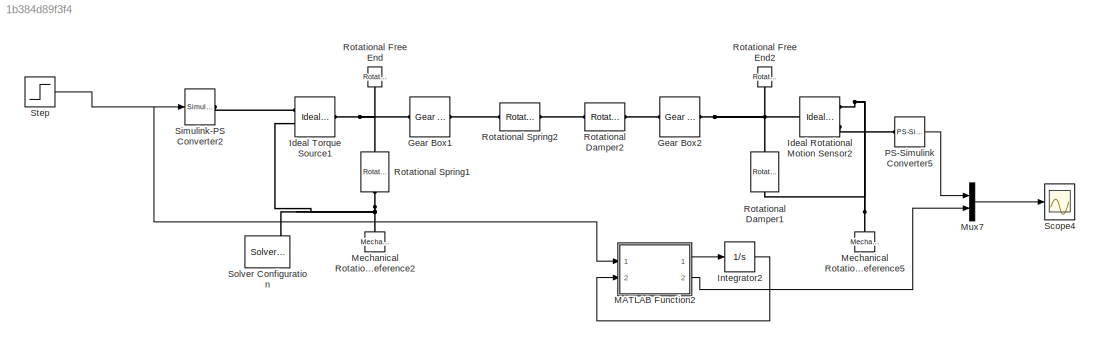
MODEL slx_1b384d89f3f4
KIND model
CONFIG AbsTol = auto
CONFIG FixedStep = 1e-3
CONFIG MaxStep = auto
CONFIG MinStep = auto
CONFIG RelTol = 1e-3
CONFIG SampleTimeConstraint = Unconstrained
CONFIG Solver = ode4
CONFIG SolverMode = Auto
CONFIG SolverName = ode4
CONFIG StartTime = 0.0
CONFIG StopTime = 10.0
BLOCK [Reference] Gear Box1  REF=fl_lib/Mechanical/Mechanisms/Gear Box
  ClassName = gear_box
  ComponentPath = foundation.mechanical.mechanisms.gear_box
  ComponentVariantNames = gear_box
  ComponentVariants = foundation.mechanical.mechanisms.gear_box
  LogSimulationData = off
  Ports = [0, 0, 0, 0, 0, 1, 1]
  SchemaVersion = 1
  SourceBlock = fl_lib/Mechanical/Mechanisms/Gear Box
  SourceFile = foundation.mechanical.mechanisms.gear_box
  SourceType = Gear Box
  ratio = 300/30
  ratio_unit = 1
  t_in = 0
  t_in_priority = High
  t_in_specify = off
  t_in_unit = N*m
  t_out = 0
  t_out_priority = High
  t_out_specify = off
  t_out_unit = N*m
BLOCK [Reference] Gear Box2  REF=fl_lib/Mechanical/Mechanisms/Gear Box
  ClassName = gear_box
  ComponentPath = foundation.mechanical.mechanisms.gear_box
  ComponentVariantNames = gear_box
  ComponentVariants = foundation.mechanical.mechanisms.gear_box
  LogSimulationData = off
  Ports = [0, 0, 0, 0, 0, 1, 1]
  SchemaVersion = 1
  SourceBlock = fl_lib/Mechanical/Mechanisms/Gear Box
  SourceFile = foundation.mechanical.mechanisms.gear_box
  SourceType = Gear Box
  ratio = 100/10
  ratio_unit = 1
  t_in = 0
  t_in_priority = High
  t_in_specify = off
  t_in_unit = N*m
  t_out = 0
  t_out_priority = High
  t_out_specify = off
  t_out_unit = N*m
BLOCK [Reference] Ideal Rotational Motion Sensor2  REF=fl_lib/Mechanical/Mechanical Sensors/Ideal Rotational
Motion Sensor
  ClassName = angular_velocity
  ComponentPath = foundation.mechanical.sensors.angular_velocity
  ComponentVariantNames = angular_velocity
  ComponentVariants = foundation.mechanical.sensors.angular_velocity
  LogSimulationData = off
  Ports = [0, 0, 0, 0, 0, 1, 3]
  SchemaVersion = 1
  SourceBlock = fl_lib/Mechanical/Mechanical Sensors/Ideal Rotational\nMotion Sensor
  SourceFile = foundation.mechanical.sensors.angular_velocity
  SourceType = Ideal Rotational\nMotion Sensor
  offset = 0
  offset_unit = rad
BLOCK [Reference] Ideal Torque Source1  REF=fl_lib/Mechanical/Mechanical Sources/Ideal Torque Source
  ClassName = torque
  ComponentPath = foundation.mechanical.sources.torque
  ComponentVariantNames = torque
  ComponentVariants = foundation.mechanical.sources.torque
  LogSimulationData = off
  Ports = [0, 0, 0, 0, 0, 1, 2]
  SchemaVersion = 1
  SourceBlock = fl_lib/Mechanical/Mechanical Sources/Ideal Torque Source
  SourceFile = foundation.mechanical.sources.torque
  SourceType = Ideal Torque Source
BLOCK [Integrator] Integrator2
  InitialCondition = [0;0]
  Ports = [1, 1]
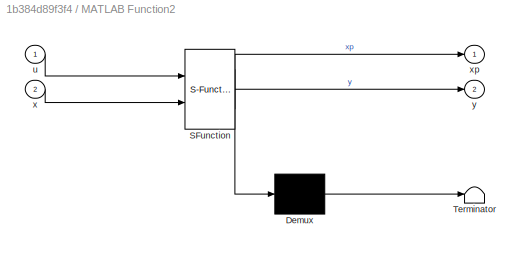
BLOCK [SubSystem] MATLAB Function2
  ErrorFcn = Stateflow.Translate.translate
  PermitHierarchicalResolution = ExplicitOnly
  Ports = [2, 2]
  RequestExecContextInheritance = off
  SFBlockType = MATLAB Function
  TreatAsAtomicUnit = on
BLOCK [Demux] MATLAB Function2/ Demux 
  Outputs = 1
  Ports = [1, 1]
BLOCK [S-Function] MATLAB Function2/ SFunction 
  EnableBusSupport = on
  FunctionName = sf_sfun
  PortCounts = [2 3]
  Ports = [2, 3]
  Tag = Stateflow S-Function untitled 3
BLOCK [Terminator] MATLAB Function2/ Terminator 
BLOCK [Inport] MATLAB Function2/u
  IconDisplay = Port number
BLOCK [Inport] MATLAB Function2/x
  IconDisplay = Port number
  Port = 2
BLOCK [Outport] MATLAB Function2/xp
  IconDisplay = Port number
BLOCK [Outport] MATLAB Function2/y
  IconDisplay = Port number
  Port = 2
BLOCK [Reference] Mechanical Rotational Reference2  REF=fl_lib/Mechanical/Rotational Elements/Mechanical
Rotational Reference
  ClassName = reference
  ComponentPath = foundation.mechanical.rotational.reference
  ComponentVariantNames = reference
  ComponentVariants = foundation.mechanical.rotational.reference
  LogSimulationData = off
  Ports = [0, 0, 0, 0, 0, 1]
  SchemaVersion = 1
  SourceBlock = fl_lib/Mechanical/Rotational Elements/Mechanical\nRotational Reference
  SourceFile = foundation.mechanical.rotational.reference
  SourceType = Mechanical\nRotational Reference
BLOCK [Reference] Mechanical Rotational Reference5  REF=fl_lib/Mechanical/Rotational Elements/Mechanical
Rotational Reference
  ClassName = reference
  ComponentPath = foundation.mechanical.rotational.reference
  ComponentVariantNames = reference
  ComponentVariants = foundation.mechanical.rotational.reference
  LogSimulationData = off
  Ports = [0, 0, 0, 0, 0, 1]
  SchemaVersion = 1
  SourceBlock = fl_lib/Mechanical/Rotational Elements/Mechanical\nRotational Reference
  SourceFile = foundation.mechanical.rotational.reference
  SourceType = Mechanical\nRotational Reference
BLOCK [Mux] Mux7
  DisplayOption = bar
  Inputs = 2
  Ports = [2, 1]
BLOCK [Reference] PS-Simulink Converter5  REF=nesl_utility/PS-Simulink
Converter
  AffineConversion = off
  Frequencies = []
  LeftPortType = input
  PhysicalDomain = network_engine_domain
  Ports = [0, 1, 0, 0, 0, 1]
  PseudoPeriodic = off
  RightPortType = output
  SourceBlock = nesl_utility/PS-Simulink\nConverter
  SourceType = PS-Simulink\nConverter
  SubClassName = ps_output
  Unit = 1
BLOCK [Reference] Rotational Damper1  REF=fl_lib/Mechanical/Rotational Elements/Rotational Damper
  ClassName = damper
  ComponentPath = foundation.mechanical.rotational.damper
  ComponentVariantNames = damper
  ComponentVariants = foundation.mechanical.rotational.damper
  D = 200
  D_unit = N*m/(rad/s)
  LogSimulationData = off
  Ports = [0, 0, 0, 0, 0, 1, 1]
  SchemaVersion = 1
  SourceBlock = fl_lib/Mechanical/Rotational Elements/Rotational Damper
  SourceFile = foundation.mechanical.rotational.damper
  SourceType = Rotational Damper
  t = 0
  t_priority = High
  t_specify = off
  t_unit = N*m
  w = 0
  w_priority = High
  w_specify = off
  w_unit = rad/s
BLOCK [Reference] Rotational Damper2  REF=fl_lib/Mechanical/Rotational Elements/Rotational Damper
  ClassName = damper
  ComponentPath = foundation.mechanical.rotational.damper
  ComponentVariantNames = damper
  ComponentVariants = foundation.mechanical.rotational.damper
  D = 3
  D_unit = N*m/(rad/s)
  LogSimulationData = off
  Ports = [0, 0, 0, 0, 0, 1, 1]
  SchemaVersion = 1
  SourceBlock = fl_lib/Mechanical/Rotational Elements/Rotational Damper
  SourceFile = foundation.mechanical.rotational.damper
  SourceType = Rotational Damper
  t = 0
  t_priority = High
  t_specify = off
  t_unit = N*m
  w = 0
  w_priority = High
  w_specify = off
  w_unit = rad/s
BLOCK [Reference] Rotational Free End  REF=fl_lib/Mechanical/Rotational Elements/Rotational Free End
  ClassName = free_end
  ComponentPath = foundation.mechanical.rotational.free_end
  ComponentVariantNames = free_end
  ComponentVariants = foundation.mechanical.rotational.free_end
  LogSimulationData = off
  Ports = [0, 0, 0, 0, 0, 1]
  SchemaVersion = 1
  SourceBlock = fl_lib/Mechanical/Rotational Elements/Rotational Free End
  SourceFile = foundation.mechanical.rotational.free_end
  SourceType = Rotational Free End
  w = 0
  w_priority = High
  w_specify = on
  w_unit = rad/s
BLOCK [Reference] Rotational Free End2  REF=fl_lib/Mechanical/Rotational Elements/Rotational Free End
  ClassName = free_end
  ComponentPath = foundation.mechanical.rotational.free_end
  ComponentVariantNames = free_end
  ComponentVariants = foundation.mechanical.rotational.free_end
  LogSimulationData = off
  Ports = [0, 0, 0, 0, 0, 1]
  SchemaVersion = 1
  SourceBlock = fl_lib/Mechanical/Rotational Elements/Rotational Free End
  SourceFile = foundation.mechanical.rotational.free_end
  SourceType = Rotational Free End
  w = 0
  w_priority = High
  w_specify = on
  w_unit = rad/s
BLOCK [Reference] Rotational Spring1  REF=fl_lib/Mechanical/Rotational Elements/Rotational Spring
  ClassName = spring
  ComponentPath = foundation.mechanical.rotational.spring
  ComponentVariantNames = spring
  ComponentVariants = foundation.mechanical.rotational.spring
  LogSimulationData = off
  Ports = [0, 0, 0, 0, 0, 1, 1]
  SchemaVersion = 1
  SourceBlock = fl_lib/Mechanical/Rotational Elements/Rotational Spring
  SourceFile = foundation.mechanical.rotational.spring
  SourceType = Rotational Spring
  phi = 0
  phi_priority = High
  phi_specify = off
  phi_unit = rad
  spr_rate = 1/10
  spr_rate_unit = N*m/rad
  t = 0
  t_priority = High
  t_specify = off
  t_unit = N*m
  w = 0
  w_priority = High
  w_specify = off
  w_unit = rad/s
BLOCK [Reference] Rotational Spring2  REF=fl_lib/Mechanical/Rotational Elements/Rotational Spring
  ClassName = spring
  ComponentPath = foundation.mechanical.rotational.spring
  ComponentVariantNames = spring
  ComponentVariants = foundation.mechanical.rotational.spring
  LogSimulationData = off
  Ports = [0, 0, 0, 0, 0, 1, 1]
  SchemaVersion = 1
  SourceBlock = fl_lib/Mechanical/Rotational Elements/Rotational Spring
  SourceFile = foundation.mechanical.rotational.spring
  SourceType = Rotational Spring
  phi = 0
  phi_priority = High
  phi_specify = off
  phi_unit = rad
  spr_rate = 2
  spr_rate_unit = N*m/rad
  t = 0
  t_priority = High
  t_specify = off
  t_unit = N*m
  w = 0
  w_priority = High
  w_specify = off
  w_unit = rad/s
BLOCK [Scope] Scope4
  Floating = off
  LimitDataPoints = off
  NumInputPorts = 1
  Ports = [1]
  SaveName = ScopeData4
  YMax = 2.48
  YMin = 2.27
BLOCK [Reference] Simulink-PS Converter2  REF=nesl_utility/Simulink-PS
Converter
  AffineConversion = off
  Frequencies = []
  InputFilterTimeConstant = 0.001
  InputFiltering = off
  LeftPortType = input
  NoiseDistribution = none
  NoiseParameters = []
  PhysicalDomain = network_engine_domain
  Ports = [1, 0, 0, 0, 0, 0, 1]
  PseudoPeriodic = off
  RightPortType = output
  SimscapeFilterOrder = 1
  SourceBlock = nesl_utility/Simulink-PS\nConverter
  SourceType = Simulink-PS\nConverter
  SubClassName = ps_input
  UdotUserProvided = 1
  Unit = 1
BLOCK [Reference] Solver Configuration  REF=nesl_utility/Solver
Configuration
  AbsTol = 1e-06
  Accelerate = off
  AutomaticFiltering = on
  DelaysMemoryBudget = 1024
  DoDC = off
  DoFixedCost = on
  EnableSwitchedLinearOptims = on
  FilteringTimeConstant = 0.001
  FrequencyDomain = off
  Harmonics = []
  LeftPortType = input
  LinearAlgebra = Sparse
  LocalSolverChoice = NE_BACKWARD_EULER_ADVANCER
  LocalSolverSampleTime = 0.001
  MaxModeIter = 2
  MaxNonlinIter = 3
  MinStep = 1e-09
  NumHomotopyIterations = 100
  PhysicalDomain = network_engine_domain
  Ports = [0, 0, 0, 0, 0, 0, 1]
  Profile = off
  RelTol = 0.001
  ResidualTolerance = 1e-09
  RevertToSquareIcSolve = off
  RightPortType = generic
  SimulateNoise = off
  SourceBlock = nesl_utility/Solver\nConfiguration
  SourceType = Solver\nConfiguration
  SubClassName = solver
  ToWorkspace = off
  Tones = []
  UseCCode = off
  UseLocalSampling = off
  UseLocalSolver = on
BLOCK [Step] Step
  SampleTime = 0
LINE Integrator2:1 -> MATLAB Function2:2
LINE MATLAB Function2:1 -> Integrator2:1
LINE MATLAB Function2:2 -> Mux7:2
LINE Mux7:1 -> Scope4:1
LINE PS-Simulink Converter5:1 -> Mux7:1
NET Step:1 -> MATLAB Function2:1, Simulink-PS Converter2:1
PNET net1: Gear Box1:LConn1 -- Ideal Torque Source1:LConn1 -- Rotational Free End:LConn1 -- Rotational Spring1:LConn1
PLINE Gear Box1:RConn1 -- Rotational Spring2:LConn1
PLINE Gear Box2:LConn1 -- Rotational Damper2:RConn1
PNET net2: Gear Box2:RConn1 -- Ideal Rotational Motion Sensor2:LConn1 -- Rotational Damper1:LConn1 -- Rotational Free End2:LConn1
PNET net3: Ideal Rotational Motion Sensor2:RConn1 -- Mechanical Rotational Reference5:LConn1 -- Rotational Damper1:RConn1
PLINE Ideal Rotational Motion Sensor2:RConn3 -- PS-Simulink Converter5:LConn1
PLINE Ideal Torque Source1:RConn1 -- Simulink-PS Converter2:RConn1
PNET net4: Ideal Torque Source1:RConn2 -- Mechanical Rotational Reference2:LConn1 -- Rotational Spring1:RConn1 -- Solver Configuration:RConn1
PLINE Rotational Damper2:LConn1 -- Rotational Spring2:RConn1
note: NET lines group one-source signal fan-out (src -> all destinations, sorted); 1:1 wires keep LINE; PNET lines group multi-terminal physical nets as a canonical sorted terminal list (undirected conserving connections); 2-terminal nets keep the pairwise PLINE form
CHART MATLAB Function2 states=1 transitions=1
  STATE_LABEL 'eML_blk_kernel()'
  STATE_LABEL "SCRIPT:\nfunction [xp,y] = fcn(u,x)\n%#codegen\nA=[-25/18 0;-5/6 0];\nB=[25/18 5/6]';\nC=[0 1/10];\nxp=A*x+B*u;\ny = C*x;"
